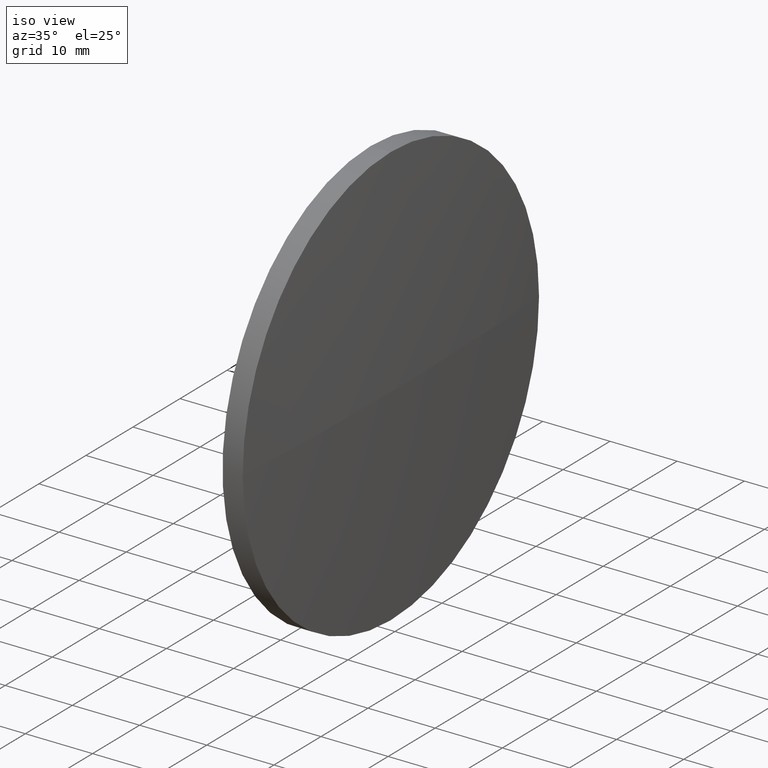
[diagram: clean part render]
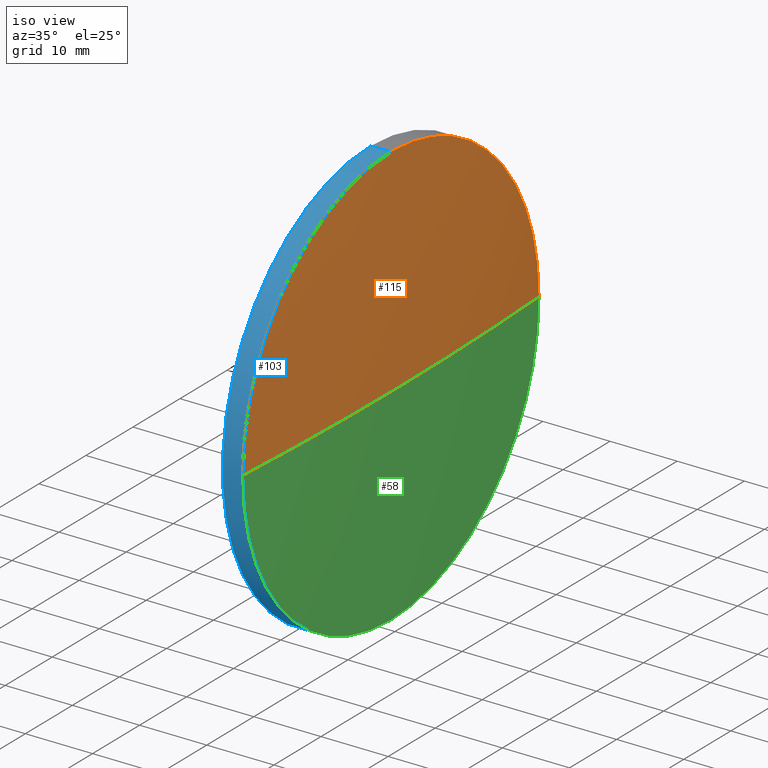
[diagram: same view with three faces highlighted in distinct colors, each labeled with its STEP entity id]
A machine part, iso view with three faces highlighted in distinct colors.
Their STEP definitions:

[orange] entity #115 — the highlighted spherical surface has radius 517.277 mm.
#3 = EDGE_CURVE ( 'NONE', #57, #143, #108, .T. ) ;
#9 = DIRECTION ( 'NONE',  ( -1.000000000000000000, -0.0000000000000000000, -0.0000000000000000000 ) ) ;
#17 = AXIS2_PLACEMENT_3D ( 'NONE', #37, #121, #94 ) ;
#20 = EDGE_CURVE ( 'NONE', #152, #57, #134, .T. ) ;
#25 = DIRECTION ( 'NONE',  ( 0.0000000000000000000, -1.224646799147353200E-016, 1.000000000000000000 ) ) ;
#31 = ORIENTED_EDGE ( 'NONE', *, *, #20, .F. ) ;
#33 = AXIS2_PLACEMENT_3D ( 'NONE', #61, #92, #122 ) ;
#36 = CARTESIAN_POINT ( 'NONE',  ( 239.3701037227097000, 161.5418907599244300, 3.857637417314121700E-015 ) ) ;
#37 = CARTESIAN_POINT ( 'NONE',  ( 239.3701037227096700, 130.0418907599245100, 0.0000000000000000000 ) ) ;
#44 = ORIENTED_EDGE ( 'NONE', *, *, #69, .T. ) ;
#46 = CARTESIAN_POINT ( 'NONE',  ( 239.3701037227097000, 98.54189075992485400, 0.0000000000000000000 ) ) ;
#53 = CARTESIAN_POINT ( 'NONE',  ( -276.9467712772858500, 130.0418907599247700, 0.0000000000000000000 ) ) ;
#57 = VERTEX_POINT ( 'NONE', #46 ) ;
#61 = CARTESIAN_POINT ( 'NONE',  ( -276.9467712772858500, 130.0418907599247700, 0.0000000000000000000 ) ) ;
#67 = SPHERICAL_SURFACE ( 'NONE', #33, 517.2768749999955800 ) ;
#69 = EDGE_CURVE ( 'NONE', #152, #84, #117, .T. ) ;
#72 = DIRECTION ( 'NONE',  ( 0.0000000000000000000, 0.0000000000000000000, 1.000000000000000000 ) ) ;
#77 = CARTESIAN_POINT ( 'NONE',  ( 240.3301037227096800, 130.0418907599247400, 0.0000000000000000000 ) ) ;
#84 = VERTEX_POINT ( 'NONE', #36 ) ;
#90 = DIRECTION ( 'NONE',  ( 0.0000000000000000000, -1.000000000000000000, -1.224646799147353200E-016 ) ) ;
#92 = DIRECTION ( 'NONE',  ( 0.0000000000000000000, 0.0000000000000000000, 1.000000000000000000 ) ) ;
#93 = AXIS2_PLACEMENT_3D ( 'NONE', #164, #9, #72 ) ;
#94 = DIRECTION ( 'NONE',  ( 0.0000000000000000000, 0.0000000000000000000, 1.000000000000000000 ) ) ;
#98 = ORIENTED_EDGE ( 'NONE', *, *, #3, .F. ) ;
#99 = AXIS2_PLACEMENT_3D ( 'NONE', #53, #25, #90 ) ;
#108 = CIRCLE ( 'NONE', #93, 31.50000000000000000 ) ;
#110 = EDGE_CURVE ( 'NONE', #143, #84, #155, .T. ) ;
#112 = FACE_OUTER_BOUND ( 'NONE', #178, .T. ) ;
#113 = ORIENTED_EDGE ( 'NONE', *, *, #110, .F. ) ;
#115 = ADVANCED_FACE ( 'NONE', ( #112 ), #67, .T. ) ;
#117 = CIRCLE ( 'NONE', #99, 517.2768749999955800 ) ;
#121 = DIRECTION ( 'NONE',  ( -1.000000000000000000, -0.0000000000000000000, -0.0000000000000000000 ) ) ;
#122 = DIRECTION ( 'NONE',  ( 0.0000000000000000000, -1.000000000000000000, 0.0000000000000000000 ) ) ;
#133 = DIRECTION ( 'NONE',  ( -1.000000000000000000, 0.0000000000000000000, 0.0000000000000000000 ) ) ;
#134 = CIRCLE ( 'NONE', #177, 517.2768749999955800 ) ;
#135 = DIRECTION ( 'NONE',  ( 0.0000000000000000000, 0.0000000000000000000, -1.000000000000000000 ) ) ;
#143 = VERTEX_POINT ( 'NONE', #171 ) ;
#149 = CARTESIAN_POINT ( 'NONE',  ( -276.9467712772858500, 130.0418907599247700, 0.0000000000000000000 ) ) ;
#152 = VERTEX_POINT ( 'NONE', #77 ) ;
#155 = CIRCLE ( 'NONE', #17, 31.50000000000000000 ) ;
#164 = CARTESIAN_POINT ( 'NONE',  ( 239.3701037227096700, 130.0418907599245100, 0.0000000000000000000 ) ) ;
#171 = CARTESIAN_POINT ( 'NONE',  ( 239.3701037227096700, 130.0418907599245100, 31.50000000000000000 ) ) ;
#177 = AXIS2_PLACEMENT_3D ( 'NONE', #149, #135, #133 ) ;
#178 = EDGE_LOOP ( 'NONE', ( #31, #44, #113, #98 ) ) ;

[blue] entity #103 — the highlighted cylindrical surface (partial cylindrical patch) has radius 31.5 mm, axis along (-1, -0, -0).
#1 = AXIS2_PLACEMENT_3D ( 'NONE', #11, #15, #124 ) ;
#3 = EDGE_CURVE ( 'NONE', #57, #143, #108, .T. ) ;
#5 = CIRCLE ( 'NONE', #161, 31.50000000000000000 ) ;
#7 = FACE_OUTER_BOUND ( 'NONE', #62, .T. ) ;
#9 = DIRECTION ( 'NONE',  ( -1.000000000000000000, -0.0000000000000000000, -0.0000000000000000000 ) ) ;
#11 = CARTESIAN_POINT ( 'NONE',  ( 217.3311486608872700, 130.0418907599245100, 0.0000000000000000000 ) ) ;
#13 = DIRECTION ( 'NONE',  ( -1.000000000000000000, -0.0000000000000000000, -0.0000000000000000000 ) ) ;
#15 = DIRECTION ( 'NONE',  ( -1.000000000000000000, -0.0000000000000000000, -0.0000000000000000000 ) ) ;
#34 = VERTEX_POINT ( 'NONE', #166 ) ;
#38 = EDGE_CURVE ( 'NONE', #34, #57, #123, .T. ) ;
#46 = CARTESIAN_POINT ( 'NONE',  ( 239.3701037227097000, 98.54189075992485400, 0.0000000000000000000 ) ) ;
#57 = VERTEX_POINT ( 'NONE', #46 ) ;
#62 = EDGE_LOOP ( 'NONE', ( #162, #95, #147, #176, #97 ) ) ;
#66 = DIRECTION ( 'NONE',  ( -1.000000000000000000, -0.0000000000000000000, -0.0000000000000000000 ) ) ;
#71 = VECTOR ( 'NONE', #13, 1000.000000000000000 ) ;
#72 = DIRECTION ( 'NONE',  ( 0.0000000000000000000, 0.0000000000000000000, 1.000000000000000000 ) ) ;
#73 = VERTEX_POINT ( 'NONE', #102 ) ;
#74 = CARTESIAN_POINT ( 'NONE',  ( 217.3311486608872700, 130.0418907599245100, 31.50000000000000000 ) ) ;
#81 = VECTOR ( 'NONE', #66, 1000.000000000000000 ) ;
#85 = LINE ( 'NONE', #74, #81 ) ;
#86 = EDGE_CURVE ( 'NONE', #143, #183, #85, .T. ) ;
#88 = DIRECTION ( 'NONE',  ( -1.000000000000000000, -0.0000000000000000000, -0.0000000000000000000 ) ) ;
#93 = AXIS2_PLACEMENT_3D ( 'NONE', #164, #9, #72 ) ;
#95 = ORIENTED_EDGE ( 'NONE', *, *, #38, .T. ) ;
#97 = ORIENTED_EDGE ( 'NONE', *, *, #138, .F. ) ;
#101 = CYLINDRICAL_SURFACE ( 'NONE', #1, 31.50000000000000000 ) ;
#102 = CARTESIAN_POINT ( 'NONE',  ( 236.3701037227096700, 130.0418907599245100, -31.50000000000000000 ) ) ;
#103 = ADVANCED_FACE ( 'NONE', ( #7 ), #101, .T. ) ;
#108 = CIRCLE ( 'NONE', #93, 31.50000000000000000 ) ;
#123 = CIRCLE ( 'NONE', #128, 31.50000000000000000 ) ;
#124 = DIRECTION ( 'NONE',  ( 0.0000000000000000000, 0.0000000000000000000, 1.000000000000000000 ) ) ;
#128 = AXIS2_PLACEMENT_3D ( 'NONE', #131, #88, #150 ) ;
#129 = EDGE_CURVE ( 'NONE', #34, #73, #142, .T. ) ;
#131 = CARTESIAN_POINT ( 'NONE',  ( 239.3701037227096700, 130.0418907599245100, 0.0000000000000000000 ) ) ;
#136 = CARTESIAN_POINT ( 'NONE',  ( 217.3311486608872700, 130.0418907599245100, -31.50000000000000000 ) ) ;
#138 = EDGE_CURVE ( 'NONE', #73, #183, #5, .T. ) ;
#141 = DIRECTION ( 'NONE',  ( -1.000000000000000000, -0.0000000000000000000, -0.0000000000000000000 ) ) ;
#142 = LINE ( 'NONE', #136, #71 ) ;
#143 = VERTEX_POINT ( 'NONE', #171 ) ;
#147 = ORIENTED_EDGE ( 'NONE', *, *, #3, .T. ) ;
#150 = DIRECTION ( 'NONE',  ( 0.0000000000000000000, 0.0000000000000000000, 1.000000000000000000 ) ) ;
#154 = CARTESIAN_POINT ( 'NONE',  ( 236.3701037227096700, 130.0418907599245100, 0.0000000000000000000 ) ) ;
#161 = AXIS2_PLACEMENT_3D ( 'NONE', #154, #141, #169 ) ;
#162 = ORIENTED_EDGE ( 'NONE', *, *, #129, .F. ) ;
#164 = CARTESIAN_POINT ( 'NONE',  ( 239.3701037227096700, 130.0418907599245100, 0.0000000000000000000 ) ) ;
#166 = CARTESIAN_POINT ( 'NONE',  ( 239.3701037227096700, 130.0418907599245100, -31.50000000000000000 ) ) ;
#169 = DIRECTION ( 'NONE',  ( 0.0000000000000000000, 0.0000000000000000000, 1.000000000000000000 ) ) ;
#171 = CARTESIAN_POINT ( 'NONE',  ( 239.3701037227096700, 130.0418907599245100, 31.50000000000000000 ) ) ;
#176 = ORIENTED_EDGE ( 'NONE', *, *, #86, .T. ) ;
#181 = CARTESIAN_POINT ( 'NONE',  ( 236.3701037227096700, 130.0418907599245100, 31.50000000000000000 ) ) ;
#183 = VERTEX_POINT ( 'NONE', #181 ) ;

[green] entity #58 — the highlighted spherical surface has radius 517.277 mm.
#2 = FACE_OUTER_BOUND ( 'NONE', #70, .T. ) ;
#6 = ORIENTED_EDGE ( 'NONE', *, *, #107, .F. ) ;
#8 = AXIS2_PLACEMENT_3D ( 'NONE', #87, #116, #48 ) ;
#20 = EDGE_CURVE ( 'NONE', #152, #57, #134, .T. ) ;
#25 = DIRECTION ( 'NONE',  ( 0.0000000000000000000, -1.224646799147353200E-016, 1.000000000000000000 ) ) ;
#34 = VERTEX_POINT ( 'NONE', #166 ) ;
#36 = CARTESIAN_POINT ( 'NONE',  ( 239.3701037227097000, 161.5418907599244300, 3.857637417314121700E-015 ) ) ;
#38 = EDGE_CURVE ( 'NONE', #34, #57, #123, .T. ) ;
#46 = CARTESIAN_POINT ( 'NONE',  ( 239.3701037227097000, 98.54189075992485400, 0.0000000000000000000 ) ) ;
#48 = DIRECTION ( 'NONE',  ( 0.0000000000000000000, -1.000000000000000000, 0.0000000000000000000 ) ) ;
#53 = CARTESIAN_POINT ( 'NONE',  ( -276.9467712772858500, 130.0418907599247700, 0.0000000000000000000 ) ) ;
#57 = VERTEX_POINT ( 'NONE', #46 ) ;
#58 = ADVANCED_FACE ( 'NONE', ( #2 ), #175, .T. ) ;
#63 = CARTESIAN_POINT ( 'NONE',  ( 239.3701037227096700, 130.0418907599245100, 0.0000000000000000000 ) ) ;
#69 = EDGE_CURVE ( 'NONE', #152, #84, #117, .T. ) ;
#70 = EDGE_LOOP ( 'NONE', ( #80, #91, #104, #6 ) ) ;
#76 = DIRECTION ( 'NONE',  ( 0.0000000000000000000, 0.0000000000000000000, 1.000000000000000000 ) ) ;
#77 = CARTESIAN_POINT ( 'NONE',  ( 240.3301037227096800, 130.0418907599247400, 0.0000000000000000000 ) ) ;
#80 = ORIENTED_EDGE ( 'NONE', *, *, #69, .F. ) ;
#82 = AXIS2_PLACEMENT_3D ( 'NONE', #63, #180, #76 ) ;
#84 = VERTEX_POINT ( 'NONE', #36 ) ;
#87 = CARTESIAN_POINT ( 'NONE',  ( -276.9467712772858500, 130.0418907599247700, 0.0000000000000000000 ) ) ;
#88 = DIRECTION ( 'NONE',  ( -1.000000000000000000, -0.0000000000000000000, -0.0000000000000000000 ) ) ;
#90 = DIRECTION ( 'NONE',  ( 0.0000000000000000000, -1.000000000000000000, -1.224646799147353200E-016 ) ) ;
#91 = ORIENTED_EDGE ( 'NONE', *, *, #20, .T. ) ;
#99 = AXIS2_PLACEMENT_3D ( 'NONE', #53, #25, #90 ) ;
#104 = ORIENTED_EDGE ( 'NONE', *, *, #38, .F. ) ;
#107 = EDGE_CURVE ( 'NONE', #84, #34, #109, .T. ) ;
#109 = CIRCLE ( 'NONE', #82, 31.50000000000000000 ) ;
#116 = DIRECTION ( 'NONE',  ( 0.0000000000000000000, 0.0000000000000000000, 1.000000000000000000 ) ) ;
#117 = CIRCLE ( 'NONE', #99, 517.2768749999955800 ) ;
#123 = CIRCLE ( 'NONE', #128, 31.50000000000000000 ) ;
#128 = AXIS2_PLACEMENT_3D ( 'NONE', #131, #88, #150 ) ;
#131 = CARTESIAN_POINT ( 'NONE',  ( 239.3701037227096700, 130.0418907599245100, 0.0000000000000000000 ) ) ;
#133 = DIRECTION ( 'NONE',  ( -1.000000000000000000, 0.0000000000000000000, 0.0000000000000000000 ) ) ;
#134 = CIRCLE ( 'NONE', #177, 517.2768749999955800 ) ;
#135 = DIRECTION ( 'NONE',  ( 0.0000000000000000000, 0.0000000000000000000, -1.000000000000000000 ) ) ;
#149 = CARTESIAN_POINT ( 'NONE',  ( -276.9467712772858500, 130.0418907599247700, 0.0000000000000000000 ) ) ;
#150 = DIRECTION ( 'NONE',  ( 0.0000000000000000000, 0.0000000000000000000, 1.000000000000000000 ) ) ;
#152 = VERTEX_POINT ( 'NONE', #77 ) ;
#166 = CARTESIAN_POINT ( 'NONE',  ( 239.3701037227096700, 130.0418907599245100, -31.50000000000000000 ) ) ;
#175 = SPHERICAL_SURFACE ( 'NONE', #8, 517.2768749999955800 ) ;
#177 = AXIS2_PLACEMENT_3D ( 'NONE', #149, #135, #133 ) ;
#180 = DIRECTION ( 'NONE',  ( -1.000000000000000000, -0.0000000000000000000, -0.0000000000000000000 ) ) ;